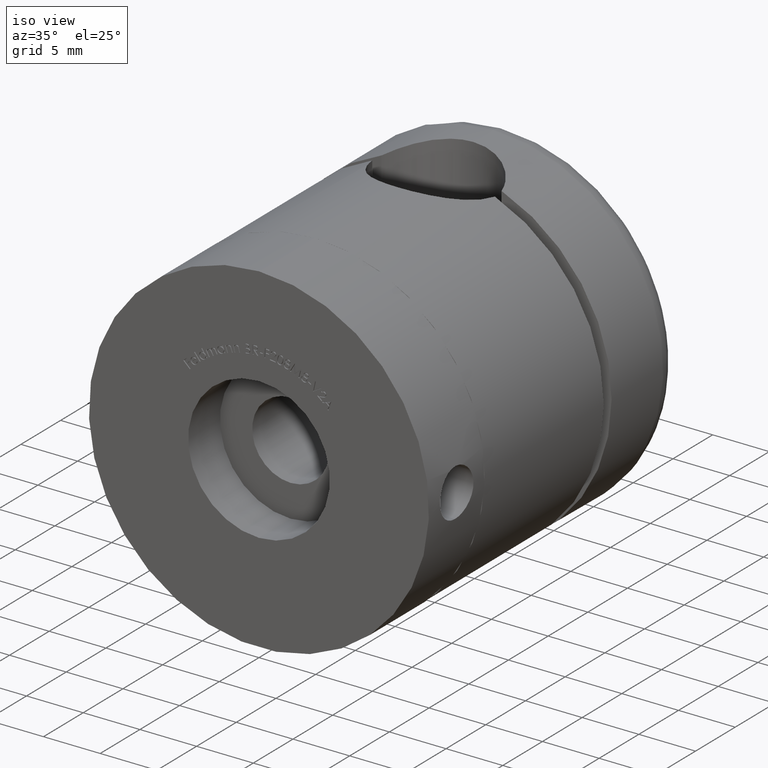
[diagram: clean part render]
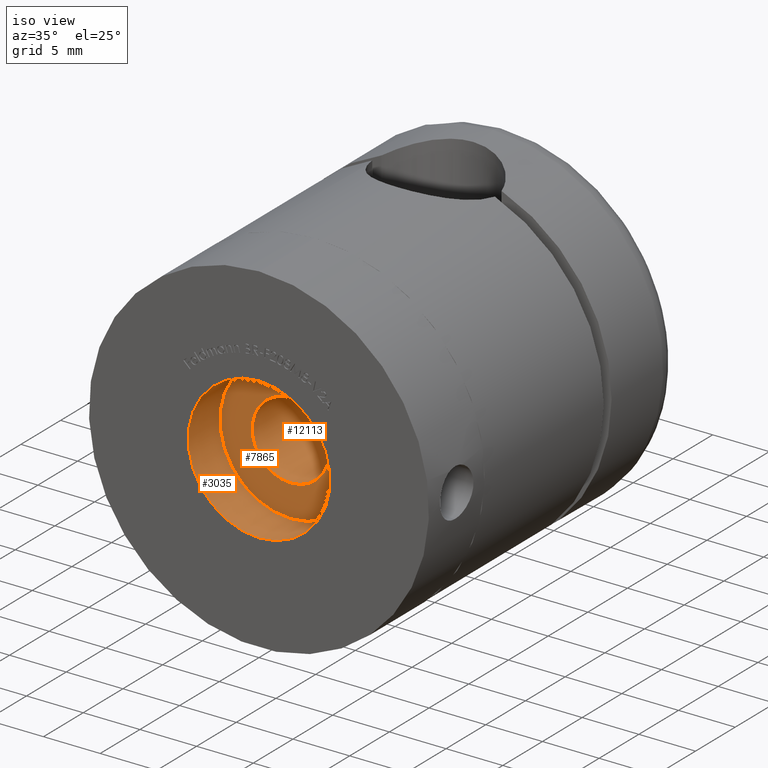
[diagram: same view with one multi-face feature highlighted, each face labeled with its STEP entity id]
A machine part, iso view. The highlighted faces form ONE feature: a stepped (counterbored) hole: 2 coaxial cylindrical walls of radii 3.4 -> 6.25 mm joined by 1 annular planar shoulder face(s). The faces share edges in the B-rep.
Their STEP definitions:
[1] entity #3035 (Cylinder):
#683 = DIRECTION ( 'NONE',  ( 0.0000000000000000000, 0.0000000000000000000, -1.000000000000000000 ) ) ;
#1875 = FACE_OUTER_BOUND ( 'NONE', #3911, .T. ) ;
#3035 = ADVANCED_FACE ( 'NONE', ( #1875, #8517 ), #4980, .F. ) ;
#3288 = CARTESIAN_POINT ( 'NONE',  ( 0.0000000000000000000, 0.0000000000000000000, 0.0000000000000000000 ) ) ;
#3520 = VERTEX_POINT ( 'NONE', #9005 ) ;
#3911 = EDGE_LOOP ( 'NONE', ( #16743 ) ) ;
#4980 = CYLINDRICAL_SURFACE ( 'NONE', #16016, 6.250000000000000000 ) ;
#6232 = EDGE_LOOP ( 'NONE', ( #6689 ) ) ;
#6273 = CARTESIAN_POINT ( 'NONE',  ( 0.0000000000000000000, 4.000000000000000000, -6.250000000000000000 ) ) ;
#6689 = ORIENTED_EDGE ( 'NONE', *, *, #10144, .T. ) ;
#7160 = DIRECTION ( 'NONE',  ( 0.0000000000000000000, 0.0000000000000000000, -1.000000000000000000 ) ) ;
#7684 = VERTEX_POINT ( 'NONE', #6273 ) ;
#8517 = FACE_OUTER_BOUND ( 'NONE', #6232, .T. ) ;
#9005 = CARTESIAN_POINT ( 'NONE',  ( 0.0000000000000000000, 0.0000000000000000000, -6.250000000000000000 ) ) ;
#10144 = EDGE_CURVE ( 'NONE', #3520, #3520, #16056, .T. ) ;
#11870 = CARTESIAN_POINT ( 'NONE',  ( 0.0000000000000000000, 4.000000000000000000, 0.0000000000000000000 ) ) ;
#11886 = CIRCLE ( 'NONE', #13888, 6.250000000000000000 ) ;
#12527 = DIRECTION ( 'NONE',  ( -0.0000000000000000000, -1.000000000000000000, -0.0000000000000000000 ) ) ;
#13888 = AXIS2_PLACEMENT_3D ( 'NONE', #11870, #14531, #16035 ) ;
#13910 = DIRECTION ( 'NONE',  ( 0.0000000000000000000, -1.000000000000000000, 0.0000000000000000000 ) ) ;
#14531 = DIRECTION ( 'NONE',  ( 0.0000000000000000000, -1.000000000000000000, 0.0000000000000000000 ) ) ;
#14865 = EDGE_CURVE ( 'NONE', #7684, #7684, #11886, .T. ) ;
#15939 = CARTESIAN_POINT ( 'NONE',  ( 0.0000000000000000000, 4.000000000000000000, 0.0000000000000000000 ) ) ;
#16016 = AXIS2_PLACEMENT_3D ( 'NONE', #15939, #12527, #7160 ) ;
#16035 = DIRECTION ( 'NONE',  ( 0.0000000000000000000, 0.0000000000000000000, -1.000000000000000000 ) ) ;
#16041 = AXIS2_PLACEMENT_3D ( 'NONE', #3288, #13910, #683 ) ;
#16056 = CIRCLE ( 'NONE', #16041, 6.250000000000000000 ) ;
#16743 = ORIENTED_EDGE ( 'NONE', *, *, #14865, .F. ) ;
[2] entity #12113 (Cylinder):
#271 = EDGE_CURVE ( 'NONE', #10383, #10383, #15810, .T. ) ;
#1508 = FACE_OUTER_BOUND ( 'NONE', #14407, .T. ) ;
#2346 = DIRECTION ( 'NONE',  ( 0.0000000000000000000, 0.0000000000000000000, -1.000000000000000000 ) ) ;
#2505 = AXIS2_PLACEMENT_3D ( 'NONE', #9089, #10171, #2346 ) ;
#2591 = DIRECTION ( 'NONE',  ( 0.0000000000000000000, -1.000000000000000000, 0.0000000000000000000 ) ) ;
#3164 = CYLINDRICAL_SURFACE ( 'NONE', #2505, 3.399999999999997700 ) ;
#3571 = EDGE_LOOP ( 'NONE', ( #16790 ) ) ;
#3681 = DIRECTION ( 'NONE',  ( 0.0000000000000000000, 0.0000000000000000000, -1.000000000000000000 ) ) ;
#4380 = AXIS2_PLACEMENT_3D ( 'NONE', #6249, #6487, #3681 ) ;
#6249 = CARTESIAN_POINT ( 'NONE',  ( 0.0000000000000000000, 4.000000000000000000, 0.0000000000000000000 ) ) ;
#6395 = CARTESIAN_POINT ( 'NONE',  ( 0.0000000000000000000, 4.000000000000000000, -3.399999999999998600 ) ) ;
#6487 = DIRECTION ( 'NONE',  ( -0.0000000000000000000, -1.000000000000000000, -0.0000000000000000000 ) ) ;
#6892 = ORIENTED_EDGE ( 'NONE', *, *, #271, .F. ) ;
#8573 = CIRCLE ( 'NONE', #4380, 3.399999999999998600 ) ;
#9089 = CARTESIAN_POINT ( 'NONE',  ( 0.0000000000000000000, 4.000000000000000000, -0.0000000000000000000 ) ) ;
#9223 = CARTESIAN_POINT ( 'NONE',  ( 0.0000000000000000000, 13.15000000000000000, 0.0000000000000000000 ) ) ;
#10171 = DIRECTION ( 'NONE',  ( -0.0000000000000000000, -1.000000000000000000, -0.0000000000000000000 ) ) ;
#10383 = VERTEX_POINT ( 'NONE', #12808 ) ;
#11481 = FACE_OUTER_BOUND ( 'NONE', #3571, .T. ) ;
#11631 = VERTEX_POINT ( 'NONE', #6395 ) ;
#11876 = DIRECTION ( 'NONE',  ( 0.0000000000000000000, 0.0000000000000000000, 1.000000000000000000 ) ) ;
#12113 = ADVANCED_FACE ( 'NONE', ( #11481, #1508 ), #3164, .F. ) ;
#12167 = EDGE_CURVE ( 'NONE', #11631, #11631, #8573, .T. ) ;
#12661 = AXIS2_PLACEMENT_3D ( 'NONE', #9223, #2591, #11876 ) ;
#12808 = CARTESIAN_POINT ( 'NONE',  ( 0.0000000000000000000, 13.15000000000000000, 3.399999999999997700 ) ) ;
#14407 = EDGE_LOOP ( 'NONE', ( #6892 ) ) ;
#15810 = CIRCLE ( 'NONE', #12661, 3.399999999999997700 ) ;
#16790 = ORIENTED_EDGE ( 'NONE', *, *, #12167, .T. ) ;
[3] entity #7865 (Plane):
#179 = ORIENTED_EDGE ( 'NONE', *, *, #14865, .T. ) ;
#1385 = ORIENTED_EDGE ( 'NONE', *, *, #12167, .F. ) ;
#2294 = PLANE ( 'NONE',  #13160 ) ;
#3681 = DIRECTION ( 'NONE',  ( 0.0000000000000000000, 0.0000000000000000000, -1.000000000000000000 ) ) ;
#4380 = AXIS2_PLACEMENT_3D ( 'NONE', #6249, #6487, #3681 ) ;
#5239 = FACE_BOUND ( 'NONE', #11246, .T. ) ;
#5452 = FACE_OUTER_BOUND ( 'NONE', #10687, .T. ) ;
#6249 = CARTESIAN_POINT ( 'NONE',  ( 0.0000000000000000000, 4.000000000000000000, 0.0000000000000000000 ) ) ;
#6273 = CARTESIAN_POINT ( 'NONE',  ( 0.0000000000000000000, 4.000000000000000000, -6.250000000000000000 ) ) ;
#6395 = CARTESIAN_POINT ( 'NONE',  ( 0.0000000000000000000, 4.000000000000000000, -3.399999999999998600 ) ) ;
#6487 = DIRECTION ( 'NONE',  ( -0.0000000000000000000, -1.000000000000000000, -0.0000000000000000000 ) ) ;
#7684 = VERTEX_POINT ( 'NONE', #6273 ) ;
#7865 = ADVANCED_FACE ( 'NONE', ( #5239, #5452 ), #2294, .T. ) ;
#8573 = CIRCLE ( 'NONE', #4380, 3.399999999999998600 ) ;
#10687 = EDGE_LOOP ( 'NONE', ( #179 ) ) ;
#11246 = EDGE_LOOP ( 'NONE', ( #1385 ) ) ;
#11595 = CARTESIAN_POINT ( 'NONE',  ( 0.0000000000000000000, 4.000000000000000000, 0.0000000000000000000 ) ) ;
#11631 = VERTEX_POINT ( 'NONE', #6395 ) ;
#11870 = CARTESIAN_POINT ( 'NONE',  ( 0.0000000000000000000, 4.000000000000000000, 0.0000000000000000000 ) ) ;
#11886 = CIRCLE ( 'NONE', #13888, 6.250000000000000000 ) ;
#12167 = EDGE_CURVE ( 'NONE', #11631, #11631, #8573, .T. ) ;
#12981 = DIRECTION ( 'NONE',  ( 0.0000000000000000000, -0.0000000000000000000, -1.000000000000000000 ) ) ;
#13160 = AXIS2_PLACEMENT_3D ( 'NONE', #11595, #16866, #12981 ) ;
#13888 = AXIS2_PLACEMENT_3D ( 'NONE', #11870, #14531, #16035 ) ;
#14531 = DIRECTION ( 'NONE',  ( 0.0000000000000000000, -1.000000000000000000, 0.0000000000000000000 ) ) ;
#14865 = EDGE_CURVE ( 'NONE', #7684, #7684, #11886, .T. ) ;
#16035 = DIRECTION ( 'NONE',  ( 0.0000000000000000000, 0.0000000000000000000, -1.000000000000000000 ) ) ;
#16866 = DIRECTION ( 'NONE',  ( 0.0000000000000000000, -1.000000000000000000, 0.0000000000000000000 ) ) ;